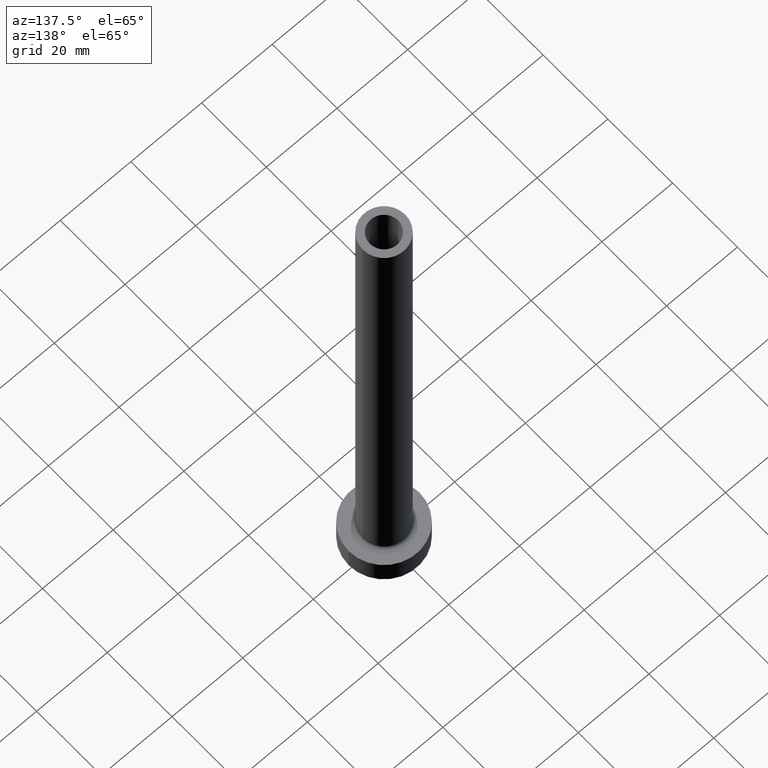
[diagram: clean part render]
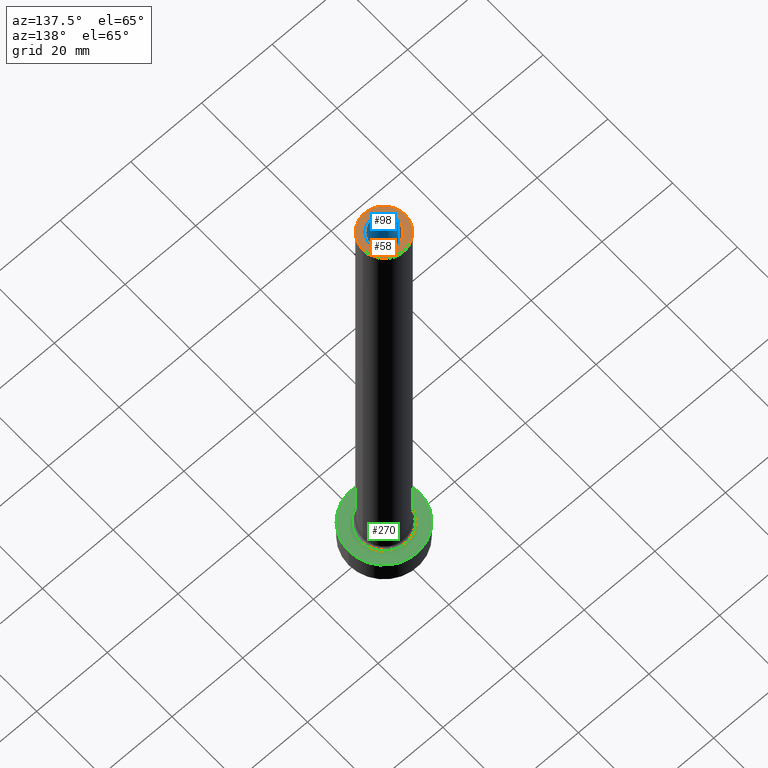
[diagram: same view with three faces highlighted in distinct colors, each labeled with its STEP entity id]
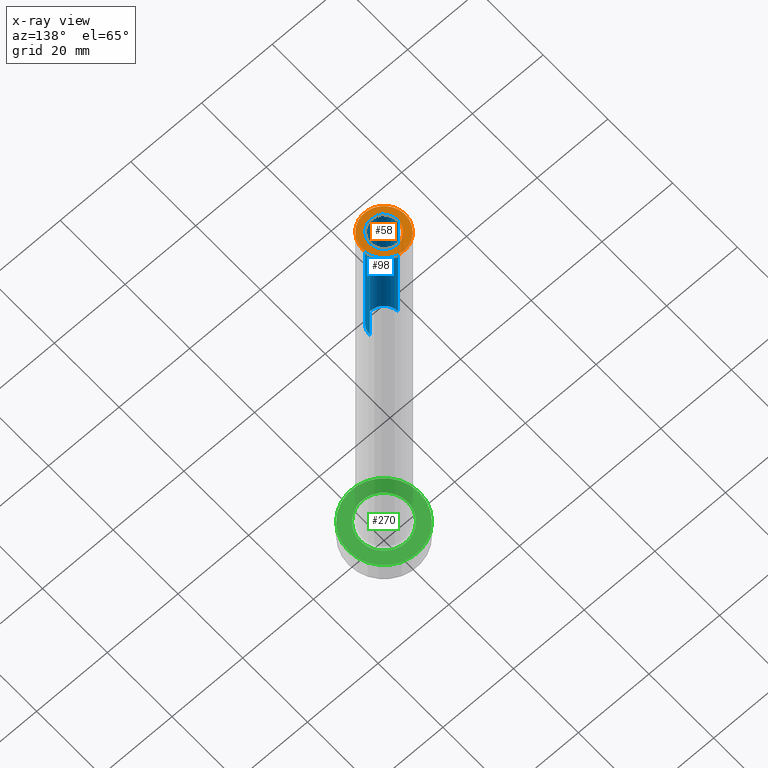
[diagram: x-ray of the same camera — body ghosted, the three highlighted faces saturated]
A machine part, auxiliary view with three faces highlighted in distinct colors.
The next image is the same camera in x-ray (body ghosted, the three faces saturated) — at least one of them is partly hidden behind the body in this view.
Their STEP definitions:

[orange] entity #58 — the highlighted planar face has unit normal (0, 0, 1).
#2 = CARTESIAN_POINT ( 'NONE',  ( 0.000000000000000000, 0.000000000000000000, 150.0000000000000000 ) ) ;
#3 = VERTEX_POINT ( 'NONE', #352 ) ;
#9 = DIRECTION ( 'NONE',  ( 0.000000000000000000, 0.000000000000000000, 1.000000000000000000 ) ) ;
#58 = ADVANCED_FACE ( 'NONE', ( #355, #137 ), #170, .T. ) ;
#60 = DIRECTION ( 'NONE',  ( 1.000000000000000000, 0.000000000000000000, 0.000000000000000000 ) ) ;
#72 = VERTEX_POINT ( 'NONE', #294 ) ;
#75 = CARTESIAN_POINT ( 'NONE',  ( 0.000000000000000000, 0.000000000000000000, 150.0000000000000000 ) ) ;
#76 = VERTEX_POINT ( 'NONE', #384 ) ;
#81 = DIRECTION ( 'NONE',  ( 0.000000000000000000, 0.000000000000000000, 1.000000000000000000 ) ) ;
#91 = CARTESIAN_POINT ( 'NONE',  ( 0.000000000000000000, 0.000000000000000000, 150.0000000000000000 ) ) ;
#106 = DIRECTION ( 'NONE',  ( 1.000000000000000000, 0.000000000000000000, -0.000000000000000000 ) ) ;
#108 = DIRECTION ( 'NONE',  ( 0.000000000000000000, 0.000000000000000000, 1.000000000000000000 ) ) ;
#133 = AXIS2_PLACEMENT_3D ( 'NONE', #2, #108, #314 ) ;
#137 = FACE_OUTER_BOUND ( 'NONE', #179, .T. ) ;
#140 = AXIS2_PLACEMENT_3D ( 'NONE', #91, #336, #60 ) ;
#142 = EDGE_LOOP ( 'NONE', ( #360, #147 ) ) ;
#147 = ORIENTED_EDGE ( 'NONE', *, *, #459, .F. ) ;
#156 = ORIENTED_EDGE ( 'NONE', *, *, #439, .T. ) ;
#170 = PLANE ( 'NONE',  #375 ) ;
#179 = EDGE_LOOP ( 'NONE', ( #156, #302 ) ) ;
#196 = AXIS2_PLACEMENT_3D ( 'NONE', #75, #9, #213 ) ;
#213 = DIRECTION ( 'NONE',  ( 1.000000000000000000, 0.000000000000000000, 0.000000000000000000 ) ) ;
#237 = CARTESIAN_POINT ( 'NONE',  ( 0.000000000000000000, 0.000000000000000000, 150.0000000000000000 ) ) ;
#240 = EDGE_CURVE ( 'NONE', #72, #76, #318, .T. ) ;
#248 = CIRCLE ( 'NONE', #133, 6.000000000000000888 ) ;
#258 = DIRECTION ( 'NONE',  ( 1.000000000000000000, 0.000000000000000000, 0.000000000000000000 ) ) ;
#266 = CARTESIAN_POINT ( 'NONE',  ( -6.000000000000000888, 0.000000000000000000, 150.0000000000000000 ) ) ;
#275 = CARTESIAN_POINT ( 'NONE',  ( 0.000000000000000000, 0.000000000000000000, 150.0000000000000000 ) ) ;
#294 = CARTESIAN_POINT ( 'NONE',  ( -4.000000000000000000, 0.000000000000000000, 150.0000000000000000 ) ) ;
#302 = ORIENTED_EDGE ( 'NONE', *, *, #399, .T. ) ;
#314 = DIRECTION ( 'NONE',  ( 1.000000000000000000, 0.000000000000000000, 0.000000000000000000 ) ) ;
#315 = VERTEX_POINT ( 'NONE', #266 ) ;
#318 = CIRCLE ( 'NONE', #140, 4.000000000000000000 ) ;
#336 = DIRECTION ( 'NONE',  ( 0.000000000000000000, 0.000000000000000000, 1.000000000000000000 ) ) ;
#352 = CARTESIAN_POINT ( 'NONE',  ( 6.000000000000000888, 7.347880794884120722E-16, 150.0000000000000000 ) ) ;
#355 = FACE_BOUND ( 'NONE', #142, .T. ) ;
#360 = ORIENTED_EDGE ( 'NONE', *, *, #240, .F. ) ;
#375 = AXIS2_PLACEMENT_3D ( 'NONE', #275, #425, #106 ) ;
#384 = CARTESIAN_POINT ( 'NONE',  ( 4.000000000000000000, 4.898587196589411843E-16, 150.0000000000000000 ) ) ;
#399 = EDGE_CURVE ( 'NONE', #3, #315, #450, .T. ) ;
#404 = CIRCLE ( 'NONE', #196, 4.000000000000000000 ) ;
#425 = DIRECTION ( 'NONE',  ( 0.000000000000000000, 0.000000000000000000, 1.000000000000000000 ) ) ;
#439 = EDGE_CURVE ( 'NONE', #315, #3, #248, .T. ) ;
#445 = AXIS2_PLACEMENT_3D ( 'NONE', #237, #81, #258 ) ;
#450 = CIRCLE ( 'NONE', #445, 6.000000000000000888 ) ;
#459 = EDGE_CURVE ( 'NONE', #76, #72, #404, .T. ) ;

[blue] entity #98 — the highlighted cylindrical surface (edge-blend (fillet) strip) has radius 4 mm, axis along (0, 0, -1).
#22 = CARTESIAN_POINT ( 'NONE',  ( -4.000000000000000000, 0.000000000000000000, 105.0000000000000000 ) ) ;
#23 = EDGE_CURVE ( 'NONE', #72, #382, #350, .T. ) ;
#31 = FACE_OUTER_BOUND ( 'NONE', #420, .T. ) ;
#49 = ORIENTED_EDGE ( 'NONE', *, *, #23, .F. ) ;
#60 = DIRECTION ( 'NONE',  ( 1.000000000000000000, 0.000000000000000000, 0.000000000000000000 ) ) ;
#68 = LINE ( 'NONE', #451, #195 ) ;
#72 = VERTEX_POINT ( 'NONE', #294 ) ;
#76 = VERTEX_POINT ( 'NONE', #384 ) ;
#89 = VERTEX_POINT ( 'NONE', #457 ) ;
#91 = CARTESIAN_POINT ( 'NONE',  ( 0.000000000000000000, 0.000000000000000000, 150.0000000000000000 ) ) ;
#94 = CARTESIAN_POINT ( 'NONE',  ( 0.000000000000000000, 0.000000000000000000, 150.0000000000000000 ) ) ;
#98 = ADVANCED_FACE ( 'NONE', ( #31 ), #166, .F. ) ;
#111 = DIRECTION ( 'NONE',  ( 1.000000000000000000, 0.000000000000000000, 0.000000000000000000 ) ) ;
#116 = ORIENTED_EDGE ( 'NONE', *, *, #138, .F. ) ;
#138 = EDGE_CURVE ( 'NONE', #382, #89, #164, .T. ) ;
#140 = AXIS2_PLACEMENT_3D ( 'NONE', #91, #336, #60 ) ;
#144 = CARTESIAN_POINT ( 'NONE',  ( 0.000000000000000000, 0.000000000000000000, 105.0000000000000000 ) ) ;
#164 = CIRCLE ( 'NONE', #431, 4.000000000000000000 ) ;
#166 = CYLINDRICAL_SURFACE ( 'NONE', #285, 4.000000000000000000 ) ;
#195 = VECTOR ( 'NONE', #348, 1000.000000000000000 ) ;
#236 = VECTOR ( 'NONE', #422, 1000.000000000000000 ) ;
#240 = EDGE_CURVE ( 'NONE', #72, #76, #318, .T. ) ;
#257 = ORIENTED_EDGE ( 'NONE', *, *, #240, .T. ) ;
#285 = AXIS2_PLACEMENT_3D ( 'NONE', #94, #299, #386 ) ;
#294 = CARTESIAN_POINT ( 'NONE',  ( -4.000000000000000000, 0.000000000000000000, 150.0000000000000000 ) ) ;
#299 = DIRECTION ( 'NONE',  ( 0.000000000000000000, 0.000000000000000000, -1.000000000000000000 ) ) ;
#318 = CIRCLE ( 'NONE', #140, 4.000000000000000000 ) ;
#321 = EDGE_CURVE ( 'NONE', #76, #89, #68, .T. ) ;
#336 = DIRECTION ( 'NONE',  ( 0.000000000000000000, 0.000000000000000000, 1.000000000000000000 ) ) ;
#344 = ORIENTED_EDGE ( 'NONE', *, *, #321, .T. ) ;
#348 = DIRECTION ( 'NONE',  ( 0.000000000000000000, 0.000000000000000000, -1.000000000000000000 ) ) ;
#350 = LINE ( 'NONE', #429, #236 ) ;
#359 = DIRECTION ( 'NONE',  ( 0.000000000000000000, 0.000000000000000000, 1.000000000000000000 ) ) ;
#382 = VERTEX_POINT ( 'NONE', #22 ) ;
#384 = CARTESIAN_POINT ( 'NONE',  ( 4.000000000000000000, 4.898587196589411843E-16, 150.0000000000000000 ) ) ;
#386 = DIRECTION ( 'NONE',  ( -1.000000000000000000, 0.000000000000000000, 0.000000000000000000 ) ) ;
#420 = EDGE_LOOP ( 'NONE', ( #257, #344, #116, #49 ) ) ;
#422 = DIRECTION ( 'NONE',  ( 0.000000000000000000, 0.000000000000000000, -1.000000000000000000 ) ) ;
#429 = CARTESIAN_POINT ( 'NONE',  ( -4.000000000000000000, 0.000000000000000000, 150.0000000000000000 ) ) ;
#431 = AXIS2_PLACEMENT_3D ( 'NONE', #144, #359, #111 ) ;
#451 = CARTESIAN_POINT ( 'NONE',  ( 4.000000000000000000, 4.898587196589411843E-16, 150.0000000000000000 ) ) ;
#457 = CARTESIAN_POINT ( 'NONE',  ( 4.000000000000000000, 4.898587196589411843E-16, 105.0000000000000000 ) ) ;

[green] entity #270 — the highlighted planar face has unit normal (0, 0, 1).
#7 = CARTESIAN_POINT ( 'NONE',  ( 0.000000000000000000, 0.000000000000000000, 7.000000000000000000 ) ) ;
#11 = ORIENTED_EDGE ( 'NONE', *, *, #305, .T. ) ;
#15 = EDGE_LOOP ( 'NONE', ( #11, #417 ) ) ;
#16 = EDGE_CURVE ( 'NONE', #354, #322, #129, .T. ) ;
#24 = CARTESIAN_POINT ( 'NONE',  ( 0.000000000000000000, 0.000000000000000000, 7.000000000000000000 ) ) ;
#69 = VERTEX_POINT ( 'NONE', #229 ) ;
#70 = DIRECTION ( 'NONE',  ( -0.000000000000000000, -0.000000000000000000, -1.000000000000000000 ) ) ;
#88 = AXIS2_PLACEMENT_3D ( 'NONE', #7, #70, #455 ) ;
#96 = AXIS2_PLACEMENT_3D ( 'NONE', #380, #199, #301 ) ;
#115 = AXIS2_PLACEMENT_3D ( 'NONE', #319, #246, #139 ) ;
#129 = CIRCLE ( 'NONE', #88, 6.700000000000001066 ) ;
#139 = DIRECTION ( 'NONE',  ( 1.000000000000000000, 0.000000000000000000, 0.000000000000000000 ) ) ;
#173 = CIRCLE ( 'NONE', #115, 6.700000000000001066 ) ;
#182 = EDGE_LOOP ( 'NONE', ( #232, #407 ) ) ;
#199 = DIRECTION ( 'NONE',  ( 0.000000000000000000, 0.000000000000000000, 1.000000000000000000 ) ) ;
#221 = CARTESIAN_POINT ( 'NONE',  ( 0.000000000000000000, 0.000000000000000000, 7.000000000000000000 ) ) ;
#229 = CARTESIAN_POINT ( 'NONE',  ( -10.00000000000000000, 0.000000000000000000, 7.000000000000000000 ) ) ;
#232 = ORIENTED_EDGE ( 'NONE', *, *, #16, .T. ) ;
#246 = DIRECTION ( 'NONE',  ( -0.000000000000000000, -0.000000000000000000, -1.000000000000000000 ) ) ;
#253 = VERTEX_POINT ( 'NONE', #289 ) ;
#270 = ADVANCED_FACE ( 'NONE', ( #292, #438 ), #295, .T. ) ;
#287 = CIRCLE ( 'NONE', #96, 10.00000000000000000 ) ;
#289 = CARTESIAN_POINT ( 'NONE',  ( 10.00000000000000000, 1.224646799147353256E-15, 7.000000000000000000 ) ) ;
#292 = FACE_BOUND ( 'NONE', #182, .T. ) ;
#295 = PLANE ( 'NONE',  #403 ) ;
#301 = DIRECTION ( 'NONE',  ( 1.000000000000000000, 0.000000000000000000, 0.000000000000000000 ) ) ;
#305 = EDGE_CURVE ( 'NONE', #69, #253, #287, .T. ) ;
#310 = CIRCLE ( 'NONE', #339, 10.00000000000000000 ) ;
#319 = CARTESIAN_POINT ( 'NONE',  ( 0.000000000000000000, 0.000000000000000000, 7.000000000000000000 ) ) ;
#322 = VERTEX_POINT ( 'NONE', #340 ) ;
#339 = AXIS2_PLACEMENT_3D ( 'NONE', #221, #408, #437 ) ;
#340 = CARTESIAN_POINT ( 'NONE',  ( -6.700000000000001066, 8.205133554287267548E-16, 7.000000000000006217 ) ) ;
#354 = VERTEX_POINT ( 'NONE', #365 ) ;
#361 = EDGE_CURVE ( 'NONE', #253, #69, #310, .T. ) ;
#365 = CARTESIAN_POINT ( 'NONE',  ( 6.700000000000001066, 0.000000000000000000, 7.000000000000006217 ) ) ;
#380 = CARTESIAN_POINT ( 'NONE',  ( 0.000000000000000000, 0.000000000000000000, 7.000000000000000000 ) ) ;
#403 = AXIS2_PLACEMENT_3D ( 'NONE', #24, #443, #446 ) ;
#407 = ORIENTED_EDGE ( 'NONE', *, *, #444, .T. ) ;
#408 = DIRECTION ( 'NONE',  ( 0.000000000000000000, 0.000000000000000000, 1.000000000000000000 ) ) ;
#417 = ORIENTED_EDGE ( 'NONE', *, *, #361, .T. ) ;
#437 = DIRECTION ( 'NONE',  ( 1.000000000000000000, 0.000000000000000000, 0.000000000000000000 ) ) ;
#438 = FACE_OUTER_BOUND ( 'NONE', #15, .T. ) ;
#443 = DIRECTION ( 'NONE',  ( 0.000000000000000000, 0.000000000000000000, 1.000000000000000000 ) ) ;
#444 = EDGE_CURVE ( 'NONE', #322, #354, #173, .T. ) ;
#446 = DIRECTION ( 'NONE',  ( 1.000000000000000000, 0.000000000000000000, -0.000000000000000000 ) ) ;
#455 = DIRECTION ( 'NONE',  ( 1.000000000000000000, 0.000000000000000000, 0.000000000000000000 ) ) ;